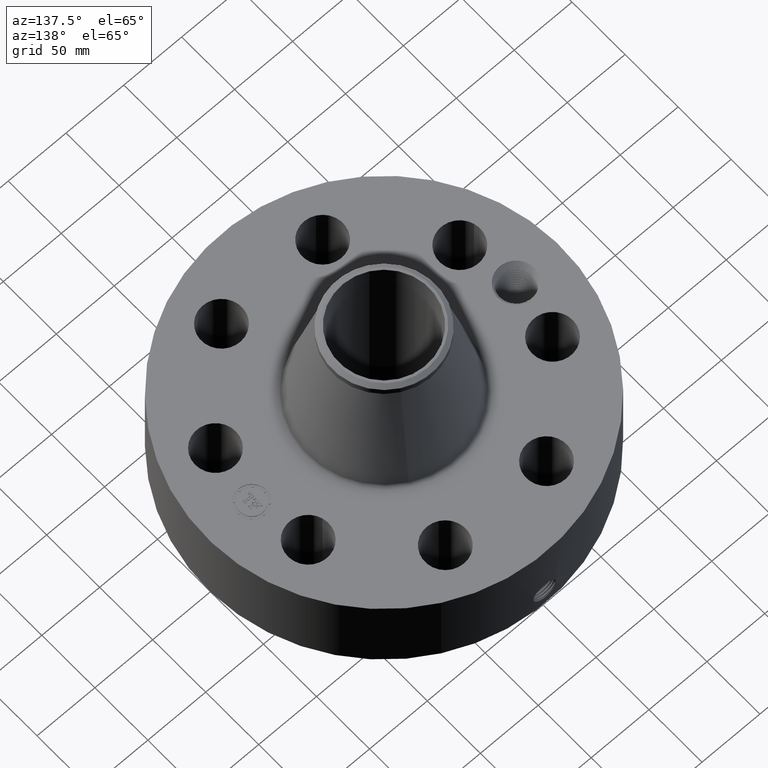
[diagram: clean part render]
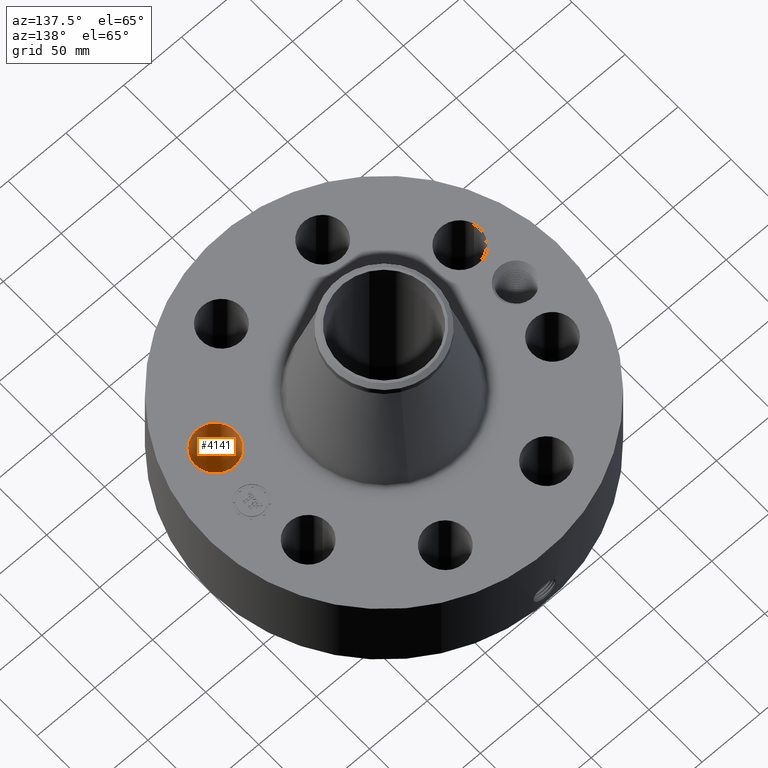
[diagram: same view with one face highlighted and labeled with its STEP entity id]
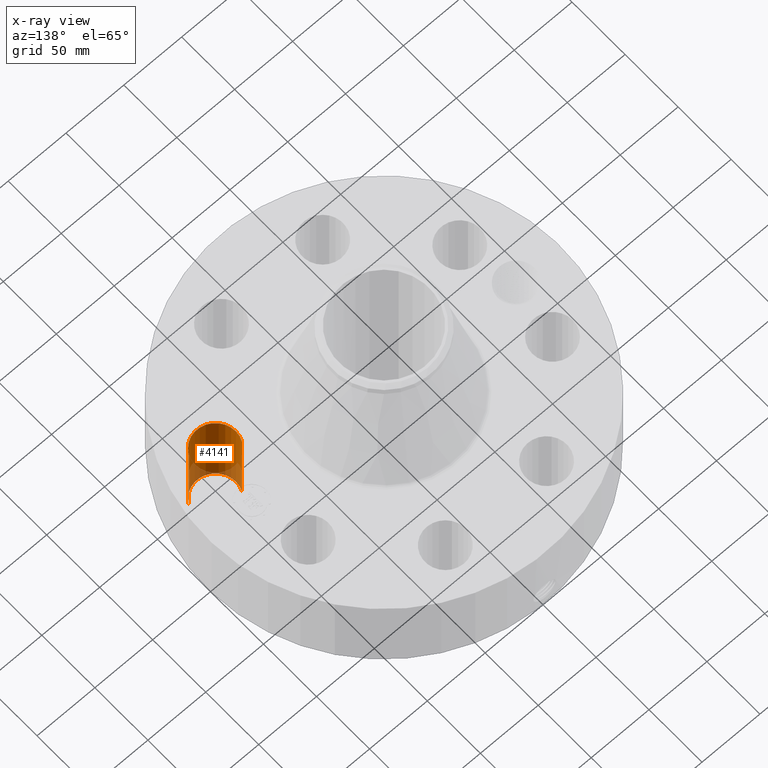
[diagram: x-ray of the same camera — body ghosted, the highlighted face saturated]
A machine part, auxiliary view. The second image highlights one B-rep face of the part: STEP entity #4141.
The next image is the same camera in x-ray: the body ghosted, the highlighted face saturated — about 19% of this face is hidden behind the body in this view.
In plain terms, the highlighted cylindrical surface (edge-blend (fillet) strip) has radius 17.526 mm, axis along (0, -0, -1).
Its self-contained STEP definition (entity closure, byte-faithful):
#2996=AXIS2_PLACEMENT_3D('Circle Axis2P3D',#2994,#2995,$) ;
#4114=AXIS2_PLACEMENT_3D('Cylinder Axis2P3D',#4111,#4112,#4113) ;
#4125=AXIS2_PLACEMENT_3D('Circle Axis2P3D',#4123,#4124,$) ;
#2989=CARTESIAN_POINT('Vertex',(3.55192592861,-1.39127182401,2.99500000001)) ;
#2991=CARTESIAN_POINT('Vertex',(4.76298986402,-2.05287906729,2.99500000001)) ;
#2994=CARTESIAN_POINT('Axis2P3D Location',(4.15745789632,-1.72207544565,2.99500000001)) ;
#4111=CARTESIAN_POINT('Axis2P3D Location',(4.15745789632,-1.72207544565,2.99106299214)) ;
#4116=CARTESIAN_POINT('Line Origine',(4.76298986402,-2.05287906729,1.49750000001)) ;
#4120=CARTESIAN_POINT('Vertex',(4.76298986402,-2.05287906729,0.)) ;
#4123=CARTESIAN_POINT('Axis2P3D Location',(4.15745789632,-1.72207544565,0.)) ;
#4127=CARTESIAN_POINT('Vertex',(3.55192592861,-1.39127182401,0.)) ;
#4130=CARTESIAN_POINT('Line Origine',(3.55192592861,-1.39127182401,1.49750000001)) ;
#2995=DIRECTION('Axis2P3D Direction',(0.,0.,-0.0393700787402)) ;
#4112=DIRECTION('Axis2P3D Direction',(0.,-0.,-0.0393700787402)) ;
#4113=DIRECTION('Axis2P3D XDirection',(-0.0345504945626,0.0188750212049,0.)) ;
#4117=DIRECTION('Vector Direction',(0.,0.,-0.0393700787402)) ;
#4124=DIRECTION('Axis2P3D Direction',(0.,-0.,-0.0393700787402)) ;
#4131=DIRECTION('Vector Direction',(0.,0.,-0.0393700787402)) ;
#4118=VECTOR('Line Direction',#4117,0.0393700787402) ;
#4132=VECTOR('Line Direction',#4131,0.0393700787402) ;
#4136=ORIENTED_EDGE('',*,*,#4122,.F.) ;
#4137=ORIENTED_EDGE('',*,*,#4129,.T.) ;
#4138=ORIENTED_EDGE('',*,*,#4134,.T.) ;
#4139=ORIENTED_EDGE('',*,*,#2998,.F.) ;
#4141=ADVANCED_FACE('PartBody',(#4140),#4115,.F.) ;
#2997=CIRCLE('generated circle',#2996,0.690000000003) ;
#4126=CIRCLE('generated circle',#4125,0.690000000003) ;
#4115=CYLINDRICAL_SURFACE('generated cylinder',#4114,0.690000000003) ;
#2998=EDGE_CURVE('',#2992,#2990,#2997,.T.) ;
#4122=EDGE_CURVE('',#4121,#2992,#4119,.F.) ;
#4129=EDGE_CURVE('',#4121,#4128,#4126,.T.) ;
#4134=EDGE_CURVE('',#4128,#2990,#4133,.F.) ;
#4135=EDGE_LOOP('',(#4136,#4137,#4138,#4139)) ;
#4140=FACE_OUTER_BOUND('',#4135,.T.) ;
#4119=LINE('Line',#4116,#4118) ;
#4133=LINE('Line',#4130,#4132) ;
#2990=VERTEX_POINT('',#2989) ;
#2992=VERTEX_POINT('',#2991) ;
#4121=VERTEX_POINT('',#4120) ;
#4128=VERTEX_POINT('',#4127) ;